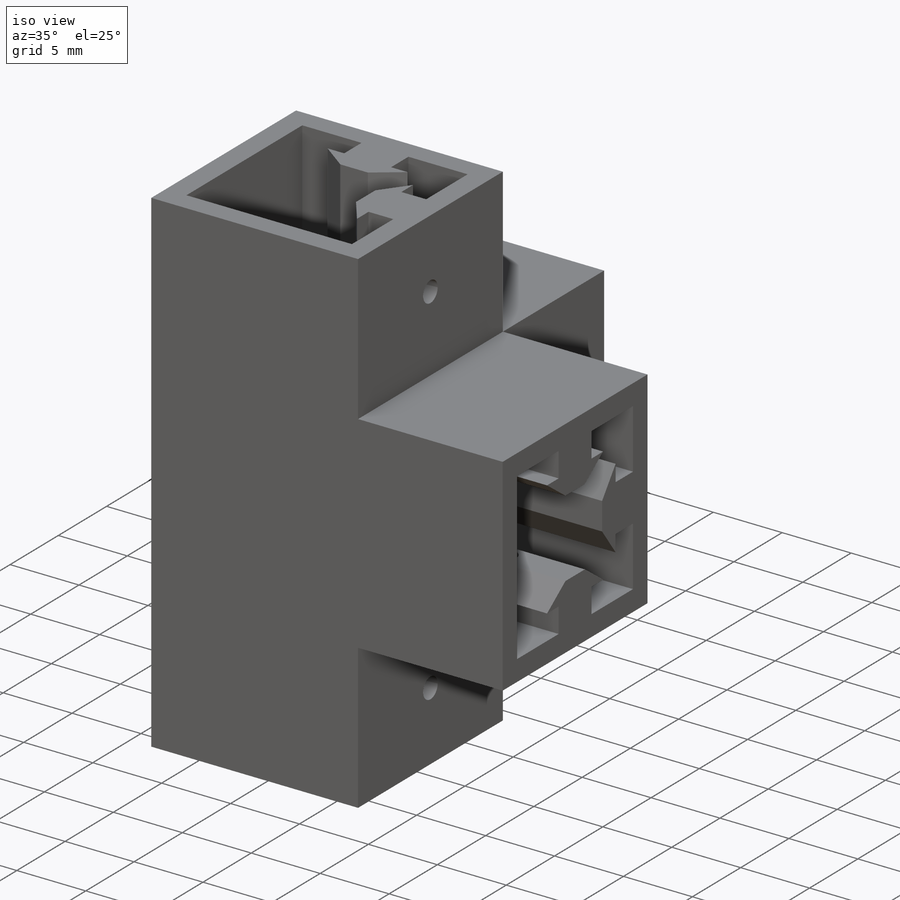
[diagram: iso view]
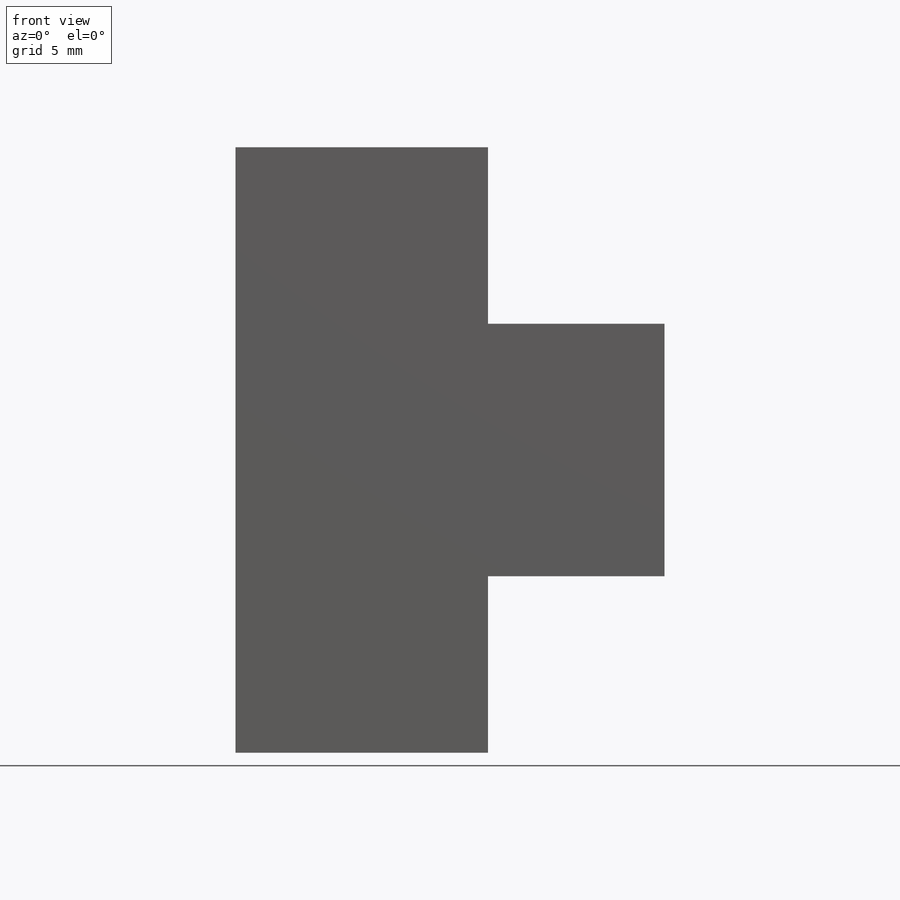
[diagram: front view]
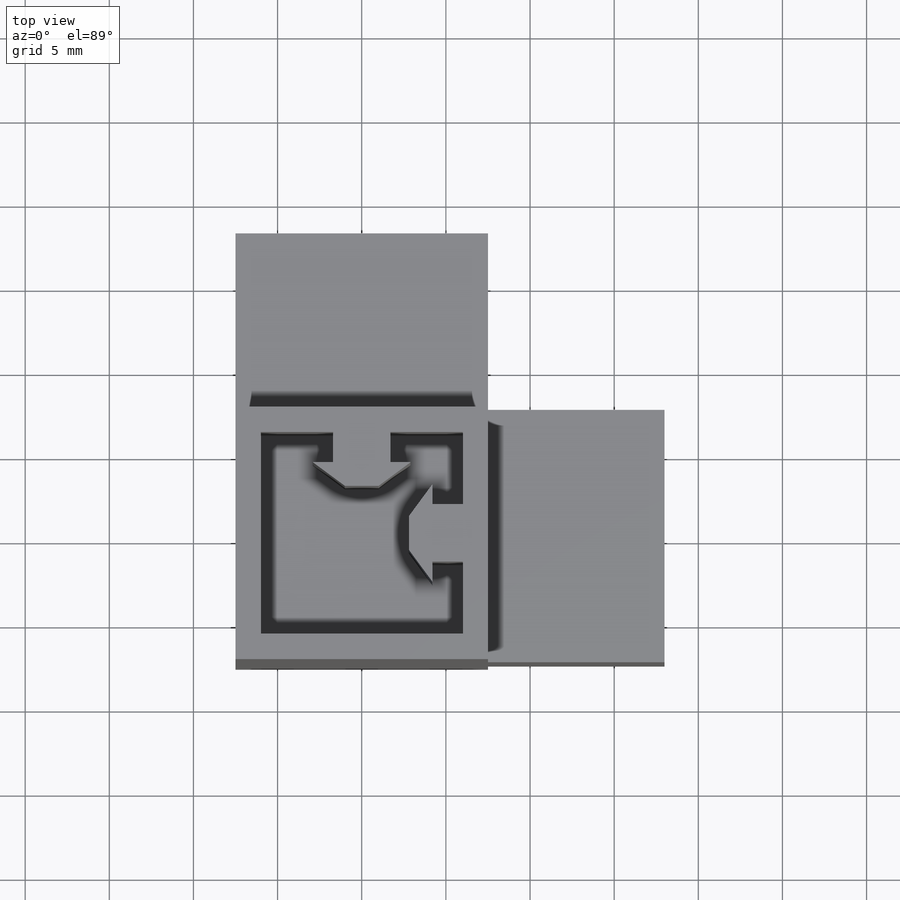
[diagram: top view]
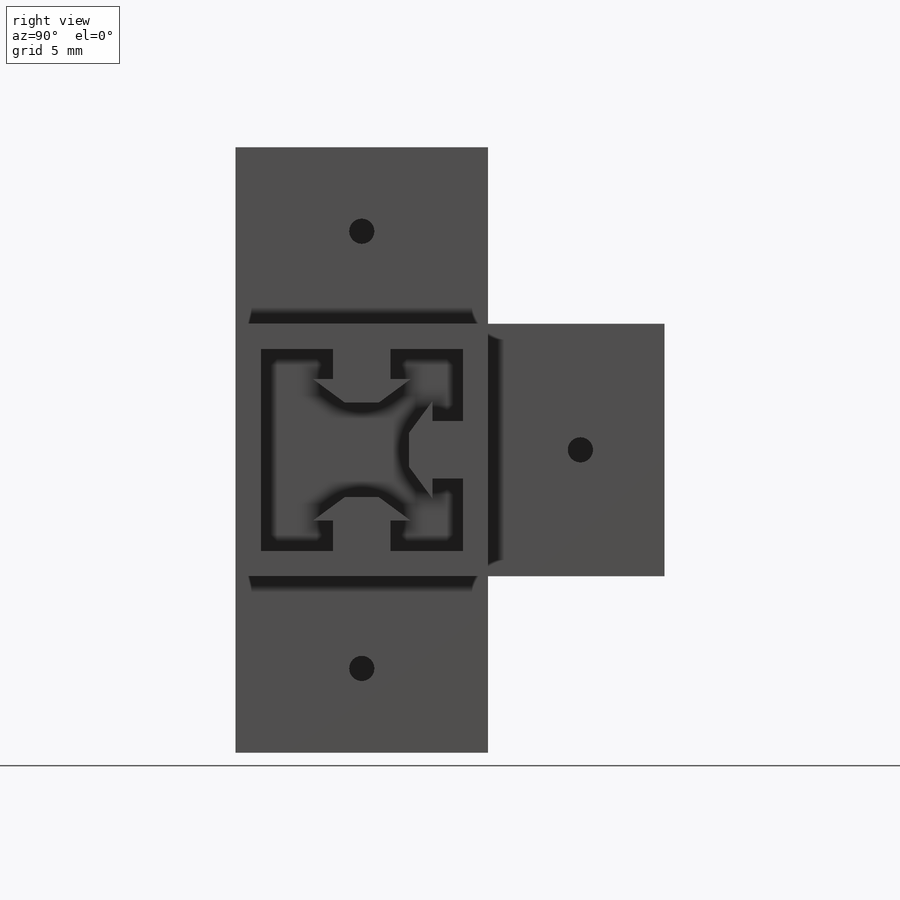
[diagram: right view]
SOLIDWORKS PART (.sldprt)
format: sldprt  version: not decoded by parser v0  size: 598,016 bytes
history: native  units: mm
features: sketch x9, cut_extrude x6, plane x5, extrude x3, pattern_circular x3, material x1 + 2 further entries (+8 scaffold rows collapsed)
feature tree (37):
  scaffold x8  (default folders/planes/origin — collapsed)
  material  "Matériau <non spécifié>"
  plane  "Plan de face"
  plane  "Plan de dessus"
  plane  "Plan de droite"
  "Axe2"
  "Axe3"
  sketch  "Cube - Esquisse"  dims[c1.D1=~16.234262mm c1.D2=~18.816986mm c2.D1=12.0mm c2.D2=12.0mm]
  extrude  "Cube - Extrusion"  Depth=12mm
  plane  "Plan Construction"  Offset=0.01mm
  sketch  "Hook - Esquisse"  dims[c1.D1=1.8mm c1.D2=3.2mm c1.D3=5.0mm c1.D4=2.0mm c1.D5=1.2mm c1.D6=~2.315636mm c2.D6=45.0deg c2.D7=1.5mm c2.D3=8.0mm c2.D8=3.4mm c3.D3=8.0mm c3.D9=0.0mm c4.D3=1.5mm c4.D6=1.0mm c4.D7=~1.148244mm c5.D7=135.0deg]
  extrude  "Hook - Extrusion"  Depth=12mm
  pattern_circular  "Hook - Circular Repeat"  Count=4 Angle=90deg
  sketch  "Hole - Esquisse"  dims[D1=1.5mm D2=5.0mm]
  cut_extrude  "Hole - Extrusion"  Depth=5mm
  pattern_circular  "3D Hook - Circular Repeat1"  Count=3 Angle=90deg
  pattern_circular  "3D Hook - Circular Repeat2"  Count=2 Angle=90deg
  sketch  "External Cube"  dims[D1=~14.189056mm D2=~14.37892mm]
  extrude  "External Cube - Extrusion"  [1 undecoded]
  sketch  "External Plain Face - Esquisse"  dims[D1=~7.35034mm D2=~3.967073mm]
  cut_extrude  "External Plain Face - Extrusion"  [1 undecoded]
  sketch  "External Plain Face3 - Esquisse"  dims[c1.D1=~4.100642mm c1.D2=~11.224119mm c2.D1=~3.98913mm c2.D2=~2.424241mm c3.D1=~8.32698mm c3.D2=~6.054375mm]
  cut_extrude  "External Plain Face3 - Extrusion"  [1 undecoded]
  plane  "Triangle Plan"
  sketch  "Esquisse2"  dims[D1=~7.354002mm D2=~3.094619mm]
  cut_extrude  "Enlèv. mat.-Extru.3"  [1 undecoded]
  sketch  "Esquisse3"
  cut_extrude  "Enlèv. mat.-Extru.4"  [1 undecoded]
  sketch  "Esquisse4"
  cut_extrude  "Enlèv. mat.-Extru.5"  [1 undecoded]
decode coverage: 13 of 21 modeling features carry decoded parameters; 2 rows unclassified (native names shown)
note: ~ marks probable driven/reference dimensions
note: 6 parameter values undecoded
summary: no parameter record found for 6 features
note: suppression state not decoded; provenance and decode notes live in map.json
